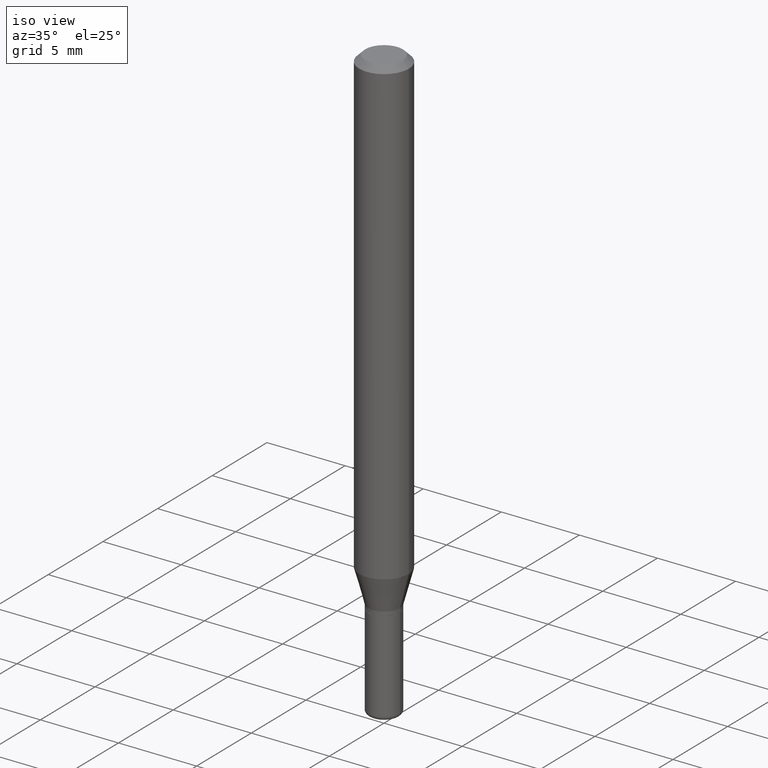
[diagram: clean part render]
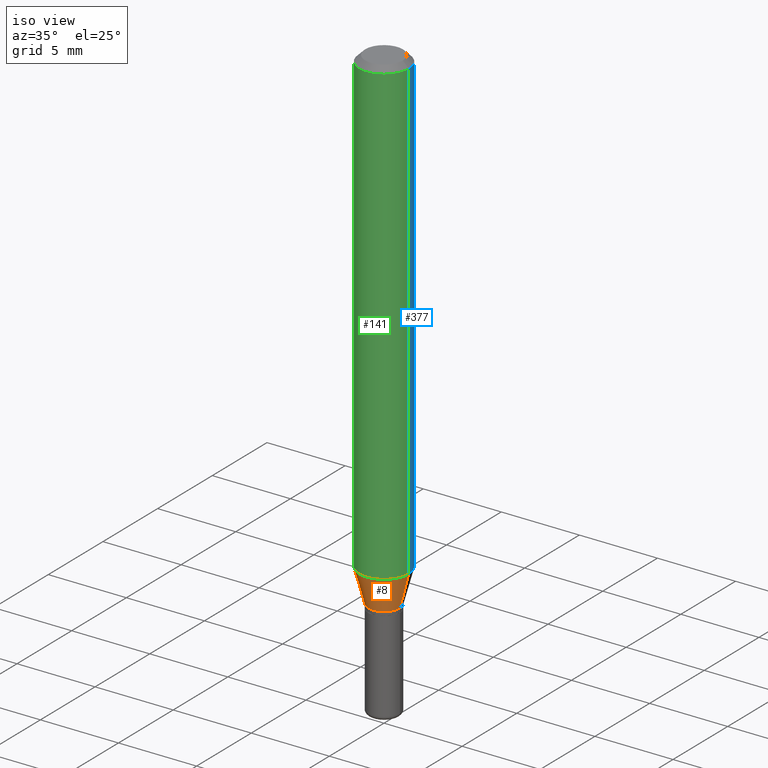
[diagram: same view with three faces highlighted in distinct colors, each labeled with its STEP entity id]
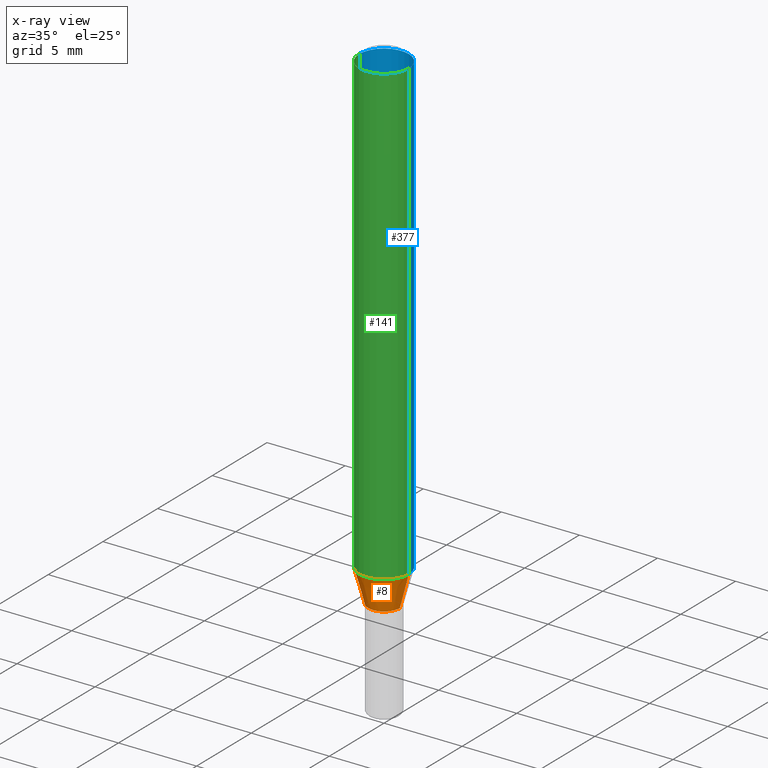
[diagram: x-ray of the same camera — body ghosted, the three highlighted faces saturated]
A machine part, iso view with three faces highlighted in distinct colors.
The next image is the same camera in x-ray (body ghosted, the three faces saturated) — at least one of them is partly hidden behind the body in this view.
Their STEP definitions:

[orange] entity #8 — the highlighted conical surface has half-angle 15 deg.
#2 = EDGE_CURVE ( 'NONE', #372, #59, #259, .T. ) ;
#8 = ADVANCED_FACE ( 'NONE', ( #97 ), #436, .T. ) ;
#13 = ORIENTED_EDGE ( 'NONE', *, *, #2, .T. ) ;
#16 = CIRCLE ( 'NONE', #517, 0.06250000000000000000 ) ;
#24 = EDGE_LOOP ( 'NONE', ( #189, #256, #13, #64 ) ) ;
#36 = EDGE_CURVE ( 'NONE', #319, #372, #349, .T. ) ;
#59 = VERTEX_POINT ( 'NONE', #66 ) ;
#60 = DIRECTION ( 'NONE',  ( 1.000000000000000000, -6.982962677686279332E-15, 0.000000000000000000 ) ) ;
#64 = ORIENTED_EDGE ( 'NONE', *, *, #333, .F. ) ;
#65 = CARTESIAN_POINT ( 'NONE',  ( 0.03999999999999995920, -4.643670180661383298E-15, -1.250000000000000000 ) ) ;
#66 = CARTESIAN_POINT ( 'NONE',  ( 0.06250000000000000000, -4.507603161528896392E-15, -1.166028856829700144 ) ) ;
#76 = VECTOR ( 'NONE', #432, 39.37007874015748143 ) ;
#89 = CARTESIAN_POINT ( 'NONE',  ( 2.851487196488746564E-29, -4.071167994173503933E-15, -1.166028856829700144 ) ) ;
#97 = FACE_OUTER_BOUND ( 'NONE', #24, .T. ) ;
#123 = VECTOR ( 'NONE', #215, 39.37007874015748143 ) ;
#145 = EDGE_CURVE ( 'NONE', #319, #178, #266, .T. ) ;
#167 = DIRECTION ( 'NONE',  ( -2.445468806185136597E-29, 3.491481338843145583E-15, 1.000000000000000000 ) ) ;
#170 = DIRECTION ( 'NONE',  ( 1.000000000000000000, -6.982962677686262766E-15, 0.000000000000000000 ) ) ;
#178 = VERTEX_POINT ( 'NONE', #510 ) ;
#189 = ORIENTED_EDGE ( 'NONE', *, *, #145, .F. ) ;
#215 = DIRECTION ( 'NONE',  ( 0.2588190451025205174, 1.565188264969628476E-15, 0.9659258262890684232 ) ) ;
#221 = AXIS2_PLACEMENT_3D ( 'NONE', #244, #421, #364 ) ;
#244 = CARTESIAN_POINT ( 'NONE',  ( 3.056836007731421306E-29, -4.364351673553932471E-15, -1.250000000000000000 ) ) ;
#256 = ORIENTED_EDGE ( 'NONE', *, *, #36, .T. ) ;
#259 = LINE ( 'NONE', #65, #123 ) ;
#266 = LINE ( 'NONE', #426, #76 ) ;
#273 = CARTESIAN_POINT ( 'NONE',  ( 0.03999999999999995920, -4.643670180661383298E-15, -1.250000000000000000 ) ) ;
#319 = VERTEX_POINT ( 'NONE', #353 ) ;
#321 = DIRECTION ( 'NONE',  ( -2.445468806185136597E-29, 3.491481338843145583E-15, 1.000000000000000000 ) ) ;
#333 = EDGE_CURVE ( 'NONE', #178, #59, #16, .T. ) ;
#349 = CIRCLE ( 'NONE', #406, 0.03999999999999995920 ) ;
#353 = CARTESIAN_POINT ( 'NONE',  ( -0.03999999999999995920, -3.853606681786666336E-15, -1.250000000000000000 ) ) ;
#362 = CARTESIAN_POINT ( 'NONE',  ( 3.056836007731421306E-29, -4.364351673553932471E-15, -1.250000000000000000 ) ) ;
#364 = DIRECTION ( 'NONE',  ( 1.000000000000000000, -6.982962677686279332E-15, 0.000000000000000000 ) ) ;
#372 = VERTEX_POINT ( 'NONE', #273 ) ;
#406 = AXIS2_PLACEMENT_3D ( 'NONE', #362, #321, #60 ) ;
#421 = DIRECTION ( 'NONE',  ( -2.445468806185136597E-29, 3.491481338843145583E-15, 1.000000000000000000 ) ) ;
#426 = CARTESIAN_POINT ( 'NONE',  ( -0.03999999999999995920, -4.080134579249892145E-15, -1.250000000000000000 ) ) ;
#432 = DIRECTION ( 'NONE',  ( -0.2588190451025205174, 5.211531920934544731E-15, 0.9659258262890684232 ) ) ;
#436 = CONICAL_SURFACE ( 'NONE', #221, 0.03999999999999995920, 0.2617993877991491858 ) ;
#510 = CARTESIAN_POINT ( 'NONE',  ( -0.06250000000000000000, -3.627078784323441317E-15, -1.166028856829700144 ) ) ;
#517 = AXIS2_PLACEMENT_3D ( 'NONE', #89, #167, #170 ) ;

[blue] entity #377 — the highlighted cylindrical surface (edge-blend (fillet) strip) has radius 1.5875 mm, axis along (-0, 0, 1).
#59 = VERTEX_POINT ( 'NONE', #66 ) ;
#66 = CARTESIAN_POINT ( 'NONE',  ( 0.06250000000000000000, -4.507603161528896392E-15, -1.166028856829700144 ) ) ;
#74 = EDGE_CURVE ( 'NONE', #420, #106, #391, .T. ) ;
#106 = VERTEX_POINT ( 'NONE', #136 ) ;
#125 = DIRECTION ( 'NONE',  ( -2.445468806185136877E-29, 3.491481338843145188E-15, 1.000000000000000000 ) ) ;
#128 = CARTESIAN_POINT ( 'NONE',  ( 0.06250000000000000000, -4.364351673553916694E-16, 3.047610484872459871E-30 ) ) ;
#132 = EDGE_CURVE ( 'NONE', #59, #178, #511, .T. ) ;
#136 = CARTESIAN_POINT ( 'NONE',  ( -0.06250000000000000000, -1.617680897278012101E-15, -0.01499999999999970281 ) ) ;
#140 = AXIS2_PLACEMENT_3D ( 'NONE', #366, #251, #183 ) ;
#163 = VECTOR ( 'NONE', #272, 39.37007874015748143 ) ;
#178 = VERTEX_POINT ( 'NONE', #510 ) ;
#182 = ORIENTED_EDGE ( 'NONE', *, *, #74, .F. ) ;
#183 = DIRECTION ( 'NONE',  ( 1.000000000000000000, -6.982962677686262766E-15, 0.000000000000000000 ) ) ;
#204 = FACE_OUTER_BOUND ( 'NONE', #222, .T. ) ;
#208 = CARTESIAN_POINT ( 'NONE',  ( 0.000000000000000000, 0.000000000000000000, 0.000000000000000000 ) ) ;
#217 = ORIENTED_EDGE ( 'NONE', *, *, #330, .F. ) ;
#222 = EDGE_LOOP ( 'NONE', ( #295, #262, #182, #217 ) ) ;
#227 = DIRECTION ( 'NONE',  ( -2.445468806185136597E-29, 3.491481338843145583E-15, 1.000000000000000000 ) ) ;
#238 = VECTOR ( 'NONE', #125, 39.37007874015748143 ) ;
#251 = DIRECTION ( 'NONE',  ( -2.445468806185136597E-29, 3.491481338843145583E-15, 1.000000000000000000 ) ) ;
#262 = ORIENTED_EDGE ( 'NONE', *, *, #351, .T. ) ;
#272 = DIRECTION ( 'NONE',  ( -2.445468806185136877E-29, 3.491481338843145188E-15, 1.000000000000000000 ) ) ;
#276 = DIRECTION ( 'NONE',  ( -2.445468806185136597E-29, 3.491481338843145583E-15, 1.000000000000000000 ) ) ;
#277 = AXIS2_PLACEMENT_3D ( 'NONE', #320, #227, #334 ) ;
#295 = ORIENTED_EDGE ( 'NONE', *, *, #132, .T. ) ;
#320 = CARTESIAN_POINT ( 'NONE',  ( 3.668203209277632395E-31, -5.237222008264614861E-17, -0.01499999999999970281 ) ) ;
#330 = EDGE_CURVE ( 'NONE', #59, #420, #475, .T. ) ;
#334 = DIRECTION ( 'NONE',  ( 1.000000000000000000, -6.982962677686266711E-15, 0.000000000000000000 ) ) ;
#351 = EDGE_CURVE ( 'NONE', #178, #106, #513, .T. ) ;
#366 = CARTESIAN_POINT ( 'NONE',  ( 2.851487196488746564E-29, -4.071167994173503933E-15, -1.166028856829700144 ) ) ;
#377 = ADVANCED_FACE ( 'NONE', ( #204 ), #442, .T. ) ;
#391 = CIRCLE ( 'NONE', #277, 0.06250000000000000000 ) ;
#392 = AXIS2_PLACEMENT_3D ( 'NONE', #208, #276, #396 ) ;
#396 = DIRECTION ( 'NONE',  ( 1.000000000000000000, -6.982962677686266711E-15, 4.876176775795935793E-29 ) ) ;
#397 = CARTESIAN_POINT ( 'NONE',  ( -0.06250000000000000000, 4.440892098500626162E-16, -3.074334431409316114E-30 ) ) ;
#420 = VERTEX_POINT ( 'NONE', #466 ) ;
#442 = CYLINDRICAL_SURFACE ( 'NONE', #392, 0.06250000000000000000 ) ;
#466 = CARTESIAN_POINT ( 'NONE',  ( 0.06250000000000000000, -4.888073874380378612E-16, -0.01499999999999970281 ) ) ;
#475 = LINE ( 'NONE', #128, #238 ) ;
#510 = CARTESIAN_POINT ( 'NONE',  ( -0.06250000000000000000, -3.627078784323441317E-15, -1.166028856829700144 ) ) ;
#511 = CIRCLE ( 'NONE', #140, 0.06250000000000000000 ) ;
#513 = LINE ( 'NONE', #397, #163 ) ;

[green] entity #141 — the highlighted cylindrical surface (edge-blend (fillet) strip) has radius 1.5875 mm, axis along (-0, 0, 1).
#9 = ORIENTED_EDGE ( 'NONE', *, *, #330, .T. ) ;
#16 = CIRCLE ( 'NONE', #517, 0.06250000000000000000 ) ;
#21 = ORIENTED_EDGE ( 'NONE', *, *, #237, .F. ) ;
#47 = AXIS2_PLACEMENT_3D ( 'NONE', #103, #254, #112 ) ;
#59 = VERTEX_POINT ( 'NONE', #66 ) ;
#66 = CARTESIAN_POINT ( 'NONE',  ( 0.06250000000000000000, -4.507603161528896392E-15, -1.166028856829700144 ) ) ;
#89 = CARTESIAN_POINT ( 'NONE',  ( 2.851487196488746564E-29, -4.071167994173503933E-15, -1.166028856829700144 ) ) ;
#103 = CARTESIAN_POINT ( 'NONE',  ( 0.000000000000000000, 0.000000000000000000, 0.000000000000000000 ) ) ;
#106 = VERTEX_POINT ( 'NONE', #136 ) ;
#112 = DIRECTION ( 'NONE',  ( 1.000000000000000000, -6.982962677686266711E-15, 4.876176775795935793E-29 ) ) ;
#125 = DIRECTION ( 'NONE',  ( -2.445468806185136877E-29, 3.491481338843145188E-15, 1.000000000000000000 ) ) ;
#128 = CARTESIAN_POINT ( 'NONE',  ( 0.06250000000000000000, -4.364351673553916694E-16, 3.047610484872459871E-30 ) ) ;
#136 = CARTESIAN_POINT ( 'NONE',  ( -0.06250000000000000000, -1.617680897278012101E-15, -0.01499999999999970281 ) ) ;
#141 = ADVANCED_FACE ( 'NONE', ( #293 ), #329, .T. ) ;
#147 = EDGE_LOOP ( 'NONE', ( #287, #326, #9, #21 ) ) ;
#163 = VECTOR ( 'NONE', #272, 39.37007874015748143 ) ;
#167 = DIRECTION ( 'NONE',  ( -2.445468806185136597E-29, 3.491481338843145583E-15, 1.000000000000000000 ) ) ;
#169 = AXIS2_PLACEMENT_3D ( 'NONE', #472, #429, #236 ) ;
#170 = DIRECTION ( 'NONE',  ( 1.000000000000000000, -6.982962677686262766E-15, 0.000000000000000000 ) ) ;
#178 = VERTEX_POINT ( 'NONE', #510 ) ;
#236 = DIRECTION ( 'NONE',  ( 1.000000000000000000, -6.982962677686266711E-15, 0.000000000000000000 ) ) ;
#237 = EDGE_CURVE ( 'NONE', #106, #420, #369, .T. ) ;
#238 = VECTOR ( 'NONE', #125, 39.37007874015748143 ) ;
#254 = DIRECTION ( 'NONE',  ( -2.445468806185136597E-29, 3.491481338843145583E-15, 1.000000000000000000 ) ) ;
#272 = DIRECTION ( 'NONE',  ( -2.445468806185136877E-29, 3.491481338843145188E-15, 1.000000000000000000 ) ) ;
#287 = ORIENTED_EDGE ( 'NONE', *, *, #351, .F. ) ;
#293 = FACE_OUTER_BOUND ( 'NONE', #147, .T. ) ;
#326 = ORIENTED_EDGE ( 'NONE', *, *, #333, .T. ) ;
#329 = CYLINDRICAL_SURFACE ( 'NONE', #47, 0.06250000000000000000 ) ;
#330 = EDGE_CURVE ( 'NONE', #59, #420, #475, .T. ) ;
#333 = EDGE_CURVE ( 'NONE', #178, #59, #16, .T. ) ;
#351 = EDGE_CURVE ( 'NONE', #178, #106, #513, .T. ) ;
#369 = CIRCLE ( 'NONE', #169, 0.06250000000000000000 ) ;
#397 = CARTESIAN_POINT ( 'NONE',  ( -0.06250000000000000000, 4.440892098500626162E-16, -3.074334431409316114E-30 ) ) ;
#420 = VERTEX_POINT ( 'NONE', #466 ) ;
#429 = DIRECTION ( 'NONE',  ( -2.445468806185136597E-29, 3.491481338843145583E-15, 1.000000000000000000 ) ) ;
#466 = CARTESIAN_POINT ( 'NONE',  ( 0.06250000000000000000, -4.888073874380378612E-16, -0.01499999999999970281 ) ) ;
#472 = CARTESIAN_POINT ( 'NONE',  ( 3.668203209277632395E-31, -5.237222008264614861E-17, -0.01499999999999970281 ) ) ;
#475 = LINE ( 'NONE', #128, #238 ) ;
#510 = CARTESIAN_POINT ( 'NONE',  ( -0.06250000000000000000, -3.627078784323441317E-15, -1.166028856829700144 ) ) ;
#513 = LINE ( 'NONE', #397, #163 ) ;
#517 = AXIS2_PLACEMENT_3D ( 'NONE', #89, #167, #170 ) ;